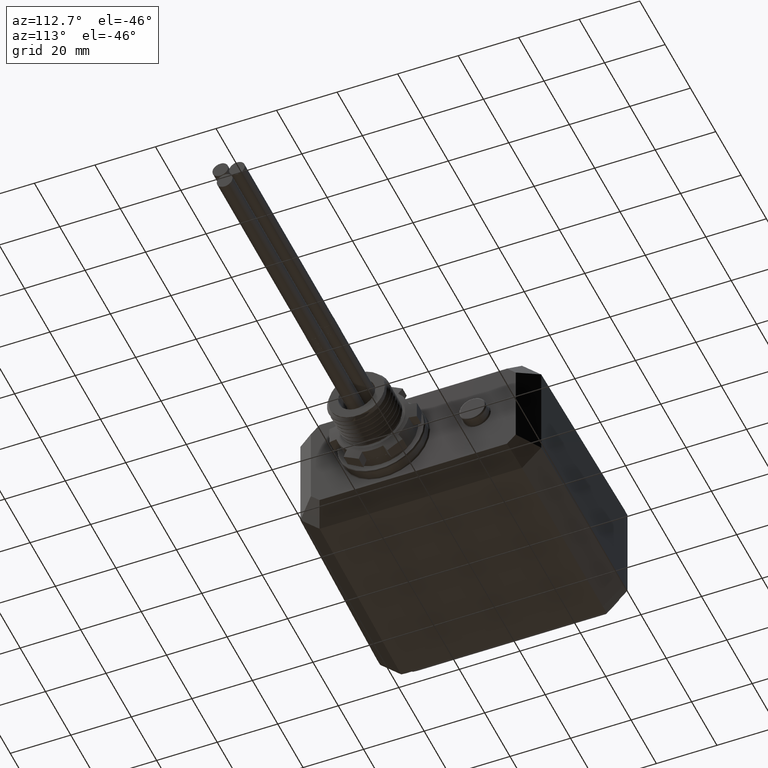
[diagram: clean part render]
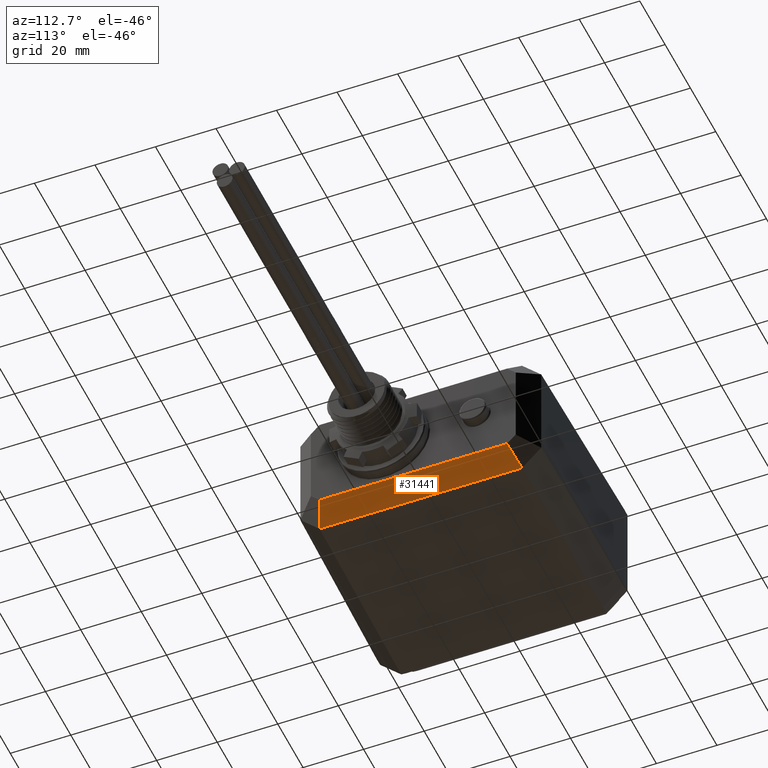
[diagram: same view with one face highlighted and labeled with its STEP entity id]
A machine part, auxiliary view. The second image highlights one B-rep face of the part: STEP entity #31441.
In plain terms, the highlighted planar face has unit normal (0.7071, -0, -0.7071).
Its self-contained STEP definition (entity closure, byte-faithful):
#1091 = ORIENTED_EDGE ( 'NONE', *, *, #4109, .F. ) ;
#1239 = VECTOR ( 'NONE', #14388, 39.37007874015748100 ) ;
#1527 = LINE ( 'NONE', #18391, #1239 ) ;
#1840 = VECTOR ( 'NONE', #26001, 39.37007874015748100 ) ;
#2291 = EDGE_CURVE ( 'NONE', #21219, #27287, #21234, .T. ) ;
#4109 = EDGE_CURVE ( 'NONE', #5896, #19511, #1527, .T. ) ;
#4888 = CARTESIAN_POINT ( 'NONE',  ( 0.5257748489050575500, 2.615950783068724700, -2.825119031868254600 ) ) ;
#5006 = EDGE_CURVE ( 'NONE', #21219, #5896, #21819, .T. ) ;
#5896 = VERTEX_POINT ( 'NONE', #4888 ) ;
#6040 = EDGE_LOOP ( 'NONE', ( #10995, #19148, #1091, #16473 ) ) ;
#7622 = AXIS2_PLACEMENT_3D ( 'NONE', #12384, #12354, #12199 ) ;
#10469 = EDGE_CURVE ( 'NONE', #19511, #27287, #16237, .T. ) ;
#10995 = ORIENTED_EDGE ( 'NONE', *, *, #2291, .T. ) ;
#12199 = DIRECTION ( 'NONE',  ( 1.411855008744344000E-018, 1.000000000000000000, 1.584696002065830100E-030 ) ) ;
#12354 = DIRECTION ( 'NONE',  ( 0.7071067811865483500, -9.983322507341987400E-019, -0.7071067811865466800 ) ) ;
#12384 = CARTESIAN_POINT ( 'NONE',  ( 0.2916888628191416900, 2.711219902414537600, -3.059205017954171000 ) ) ;
#12777 = DIRECTION ( 'NONE',  ( -1.411855008744344000E-018, -1.000000000000000000, -1.584696002065830100E-030 ) ) ;
#13559 = PLANE ( 'NONE',  #7622 ) ;
#14164 = CARTESIAN_POINT ( 'NONE',  ( 0.2916888628191416400, 0.07950217839266726600, -3.059205017954171000 ) ) ;
#14388 = DIRECTION ( 'NONE',  ( -0.6785983445458463300, 0.2810846377148197800, -0.6785983445458478900 ) ) ;
#15142 = DIRECTION ( 'NONE',  ( -0.6785983445458463300, -0.2810846377148197800, -0.6785983445458478900 ) ) ;
#15724 = VECTOR ( 'NONE', #12777, 39.37007874015748100 ) ;
#16237 = LINE ( 'NONE', #31184, #15724 ) ;
#16473 = ORIENTED_EDGE ( 'NONE', *, *, #5006, .F. ) ;
#16636 = CARTESIAN_POINT ( 'NONE',  ( 0.3587719401920638800, 0.1072888988462556300, -2.992121940581248000 ) ) ;
#18391 = CARTESIAN_POINT ( 'NONE',  ( 0.2920116907513728400, 2.712778653559147800, -3.058882190021939600 ) ) ;
#19148 = ORIENTED_EDGE ( 'NONE', *, *, #10469, .F. ) ;
#19511 = VERTEX_POINT ( 'NONE', #32538 ) ;
#20457 = VECTOR ( 'NONE', #15142, 39.37007874015748100 ) ;
#21219 = VERTEX_POINT ( 'NONE', #23552 ) ;
#21234 = LINE ( 'NONE', #16636, #20457 ) ;
#21819 = LINE ( 'NONE', #26225, #1840 ) ;
#23552 = CARTESIAN_POINT ( 'NONE',  ( 0.5257748489050575500, 0.1764637685909335200, -2.825119031868254600 ) ) ;
#26001 = DIRECTION ( 'NONE',  ( 1.411855008744344000E-018, 1.000000000000000000, 1.584696002065830100E-030 ) ) ;
#26225 = CARTESIAN_POINT ( 'NONE',  ( 0.5257748489050575500, 1.396207275829829200, -2.825119031868254600 ) ) ;
#27287 = VERTEX_POINT ( 'NONE', #14164 ) ;
#30756 = FACE_OUTER_BOUND ( 'NONE', #6040, .T. ) ;
#31184 = CARTESIAN_POINT ( 'NONE',  ( 0.2916888628191416900, 2.711219902414537600, -3.059205017954171000 ) ) ;
#31441 = ADVANCED_FACE ( 'NONE', ( #30756 ), #13559, .T. ) ;
#32538 = CARTESIAN_POINT ( 'NONE',  ( 0.2916888628191416900, 2.712912373266990900, -3.059205017954171000 ) ) ;